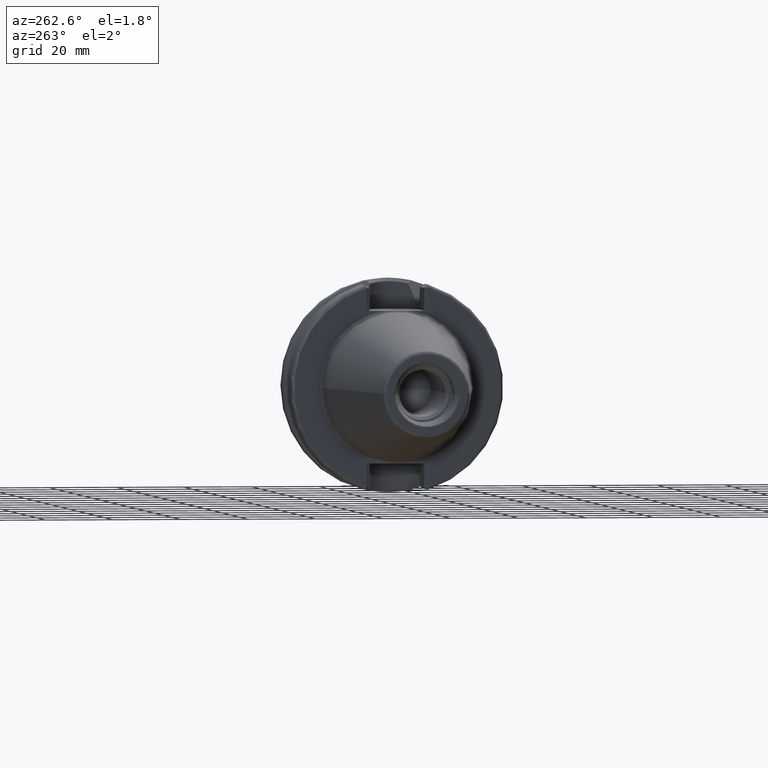
[diagram: clean part render]
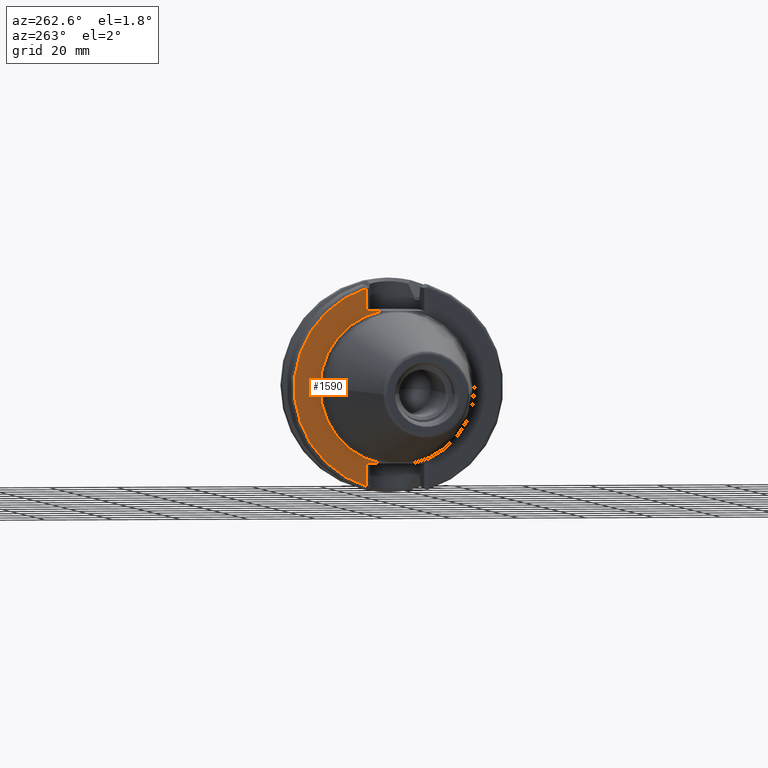
[diagram: same view with one face highlighted and labeled with its STEP entity id]
A machine part, auxiliary view. The second image highlights one B-rep face of the part: STEP entity #1590.
In plain terms, the highlighted planar face has unit normal (1, 0, 0).
Its self-contained STEP definition (entity closure, byte-faithful):
#96=CARTESIAN_POINT('',(2.E0,0.E0,0.E0));
#97=DIRECTION('',(-1.E0,0.E0,0.E0));
#98=DIRECTION('',(0.E0,1.E0,0.E0));
#99=AXIS2_PLACEMENT_3D('',#96,#97,#98);
#127=DIRECTION('',(2.137863157138E-6,2.138092596513E-6,9.999999999954E-1));
#128=VECTOR('',#127,6.649288203884E0);
#129=CARTESIAN_POINT('',(1.999985784732E0,9.094985783206E0,-2.909928820385E1));
#130=LINE('',#129,#128);
#131=DIRECTION('',(-4.462834027332E-6,-4.463945839096E-6,9.999999999801E-1));
#132=VECTOR('',#131,6.649296399125E0);
#133=CARTESIAN_POINT('',(2.E0,9.095E0,2.245E1));
#134=LINE('',#133,#132);
#592=CARTESIAN_POINT('',(2.E0,0.E0,0.E0));
#593=DIRECTION('',(-1.E0,0.E0,0.E0));
#594=DIRECTION('',(0.E0,2.983190614061E-1,9.544662055839E-1));
#595=AXIS2_PLACEMENT_3D('',#592,#593,#594);
#688=DIRECTION('',(0.E0,1.E0,0.E0));
#689=VECTOR('',#688,4.706022328605E0);
#690=CARTESIAN_POINT('',(2.E0,4.388977671395E0,2.245E1));
#691=LINE('',#690,#689);
#709=CARTESIAN_POINT('',(2.E0,0.E0,0.E0));
#710=DIRECTION('',(1.E0,0.E0,0.E0));
#711=DIRECTION('',(0.E0,1.E0,0.E0));
#712=AXIS2_PLACEMENT_3D('',#709,#710,#711);
#746=DIRECTION('',(0.E0,-1.E0,0.E0));
#747=VECTOR('',#746,4.706022328605E0);
#748=CARTESIAN_POINT('',(2.E0,9.095E0,-2.245E1));
#749=LINE('',#748,#747);
#1242=CARTESIAN_POINT('',(2.E0,2.2875E1,0.E0));
#1244=VERTEX_POINT('',#1242);
#1312=CARTESIAN_POINT('',(2.E0,4.388977671395E0,2.245E1));
#1313=VERTEX_POINT('',#1312);
#1320=CARTESIAN_POINT('',(2.E0,4.388977671395E0,-2.245E1));
#1321=VERTEX_POINT('',#1320);
#1358=CARTESIAN_POINT('',(2.E0,9.095027762300E0,2.909928051090E1));
#1360=VERTEX_POINT('',#1358);
#1362=CARTESIAN_POINT('',(2.E0,9.095E0,2.245E1));
#1363=VERTEX_POINT('',#1362);
#1372=CARTESIAN_POINT('',(1.999985784732E0,9.094985783206E0,-2.909928820385E1));
#1373=CARTESIAN_POINT('',(2.E0,9.095E0,-2.245E1));
#1374=VERTEX_POINT('',#1372);
#1375=VERTEX_POINT('',#1373);
#1570=CARTESIAN_POINT('',(2.E0,0.E0,0.E0));
#1571=DIRECTION('',(1.E0,0.E0,0.E0));
#1572=DIRECTION('',(0.E0,-1.E0,0.E0));
#1573=AXIS2_PLACEMENT_3D('',#1570,#1571,#1572);
#1574=PLANE('',#1573);
#1576=ORIENTED_EDGE('',*,*,#1575,.F.);
#1578=ORIENTED_EDGE('',*,*,#1577,.F.);
#1580=ORIENTED_EDGE('',*,*,#1579,.F.);
#1582=ORIENTED_EDGE('',*,*,#1581,.F.);
#1584=ORIENTED_EDGE('',*,*,#1583,.F.);
#1585=ORIENTED_EDGE('',*,*,#1556,.T.);
#1587=ORIENTED_EDGE('',*,*,#1586,.F.);
#1588=EDGE_LOOP('',(#1576,#1578,#1580,#1582,#1584,#1585,#1587));
#1589=FACE_OUTER_BOUND('',#1588,.F.);
#1590=ADVANCED_FACE('',(#1589),#1574,.F.);
#100=CIRCLE('',#99,2.2875E1);
#596=CIRCLE('',#595,3.04875E1);
#713=CIRCLE('',#712,2.2875E1);
#1556=EDGE_CURVE('',#1244,#1321,#100,.T.);
#1575=EDGE_CURVE('',#1374,#1375,#130,.T.);
#1577=EDGE_CURVE('',#1360,#1374,#596,.T.);
#1579=EDGE_CURVE('',#1363,#1360,#134,.T.);
#1581=EDGE_CURVE('',#1313,#1363,#691,.T.);
#1583=EDGE_CURVE('',#1244,#1313,#713,.T.);
#1586=EDGE_CURVE('',#1375,#1321,#749,.T.);